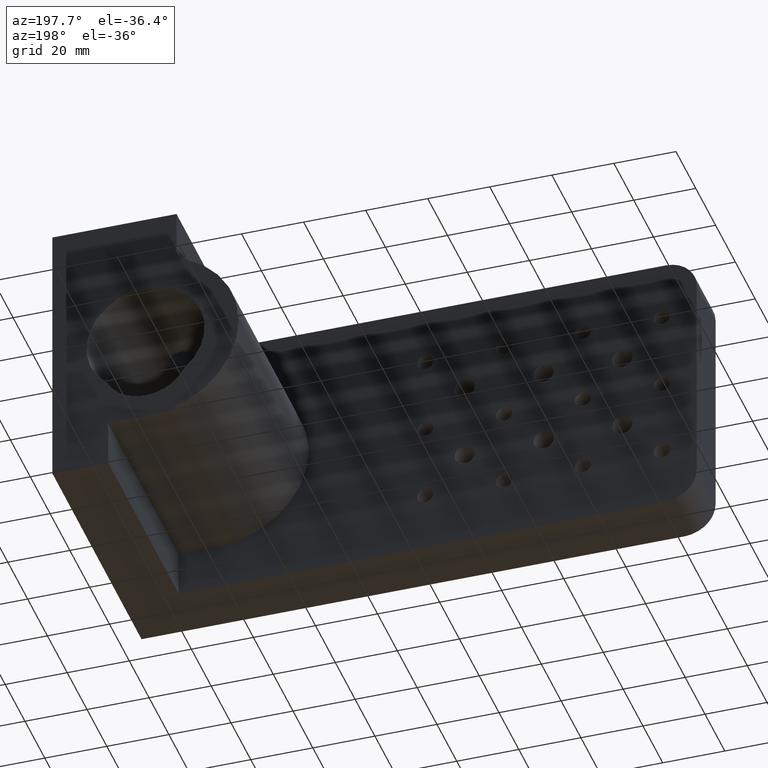
[diagram: clean part render]
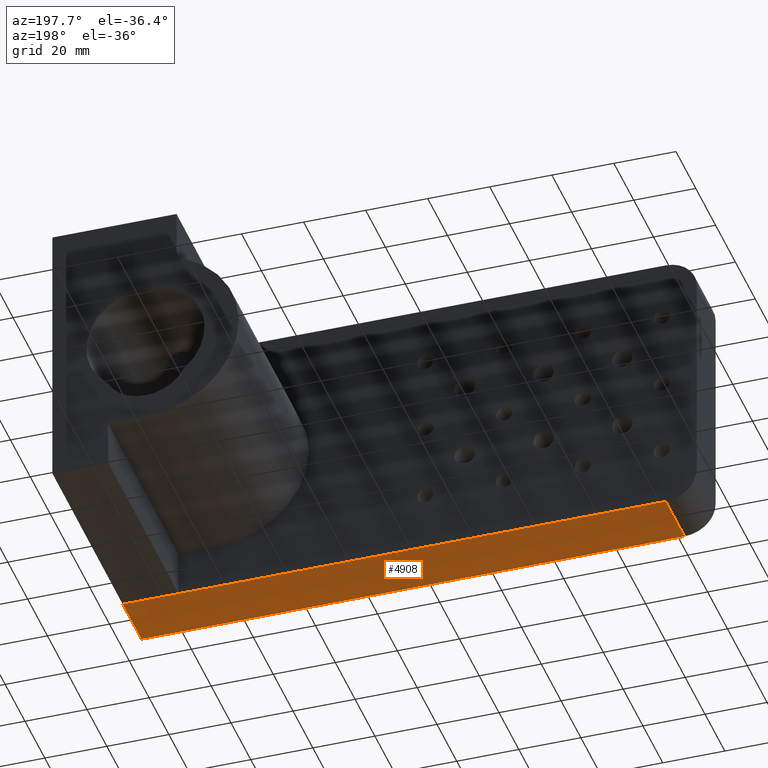
[diagram: same view with one face highlighted and labeled with its STEP entity id]
A machine part, auxiliary view. The second image highlights one B-rep face of the part: STEP entity #4908.
In plain terms, the highlighted planar face has unit normal (0, 0, -1).
Its self-contained STEP definition (entity closure, byte-faithful):
#66 = LINE ( 'NONE', #4220, #4362 ) ;
#68 = LINE ( 'NONE', #2564, #1041 ) ;
#548 = PLANE ( 'NONE',  #2893 ) ;
#970 = EDGE_CURVE ( 'NONE', #4945, #1992, #68, .T. ) ;
#1041 = VECTOR ( 'NONE', #4291, 1000.000000000000000 ) ;
#1279 = DIRECTION ( 'NONE',  ( 1.000000000000000000, -0.0000000000000000000, 0.0000000000000000000 ) ) ;
#1720 = DIRECTION ( 'NONE',  ( 1.000000000000000000, -0.0000000000000000000, 0.0000000000000000000 ) ) ;
#1763 = CARTESIAN_POINT ( 'NONE',  ( 174.3969387244427500, 85.21460203965206400, 98.81589392528026400 ) ) ;
#1825 = ORIENTED_EDGE ( 'NONE', *, *, #3580, .T. ) ;
#1901 = DIRECTION ( 'NONE',  ( -1.000000000000000000, 0.0000000000000000000, -0.0000000000000000000 ) ) ;
#1992 = VERTEX_POINT ( 'NONE', #1763 ) ;
#2124 = CARTESIAN_POINT ( 'NONE',  ( -0.6030612755571762600, 104.2146020396520600, 98.81589392528026400 ) ) ;
#2408 = VECTOR ( 'NONE', #1720, 1000.000000000000000 ) ;
#2564 = CARTESIAN_POINT ( 'NONE',  ( 174.3969387244427500, 104.2146020396520600, 98.81589392528026400 ) ) ;
#2696 = DIRECTION ( 'NONE',  ( 0.0000000000000000000, 0.0000000000000000000, -1.000000000000000000 ) ) ;
#2799 = EDGE_LOOP ( 'NONE', ( #4418, #3980, #1825, #4384 ) ) ;
#2893 = AXIS2_PLACEMENT_3D ( 'NONE', #3185, #2696, #1901 ) ;
#3028 = EDGE_CURVE ( 'NONE', #3393, #5249, #4136, .T. ) ;
#3185 = CARTESIAN_POINT ( 'NONE',  ( 174.3969387244427500, 104.2146020396520600, 98.81589392528026400 ) ) ;
#3350 = VECTOR ( 'NONE', #3360, 1000.000000000000000 ) ;
#3360 = DIRECTION ( 'NONE',  ( -0.0000000000000000000, -1.000000000000000000, -0.0000000000000000000 ) ) ;
#3393 = VERTEX_POINT ( 'NONE', #2124 ) ;
#3544 = LINE ( 'NONE', #4639, #2408 ) ;
#3580 = EDGE_CURVE ( 'NONE', #3393, #4945, #3544, .T. ) ;
#3971 = CARTESIAN_POINT ( 'NONE',  ( 174.3969387244427500, 104.2146020396520600, 98.81589392528026400 ) ) ;
#3980 = ORIENTED_EDGE ( 'NONE', *, *, #3028, .F. ) ;
#4136 = LINE ( 'NONE', #4604, #3350 ) ;
#4220 = CARTESIAN_POINT ( 'NONE',  ( 174.3969387244427500, 85.21460203965206400, 98.81589392528026400 ) ) ;
#4291 = DIRECTION ( 'NONE',  ( -0.0000000000000000000, -1.000000000000000000, -0.0000000000000000000 ) ) ;
#4362 = VECTOR ( 'NONE', #1279, 1000.000000000000000 ) ;
#4384 = ORIENTED_EDGE ( 'NONE', *, *, #970, .T. ) ;
#4418 = ORIENTED_EDGE ( 'NONE', *, *, #5149, .F. ) ;
#4503 = FACE_OUTER_BOUND ( 'NONE', #2799, .T. ) ;
#4604 = CARTESIAN_POINT ( 'NONE',  ( -0.6030612755571762600, 104.2146020396520600, 98.81589392528026400 ) ) ;
#4639 = CARTESIAN_POINT ( 'NONE',  ( 174.3969387244427500, 104.2146020396520600, 98.81589392528026400 ) ) ;
#4656 = CARTESIAN_POINT ( 'NONE',  ( -0.6030612755571762600, 85.21460203965206400, 98.81589392528026400 ) ) ;
#4908 = ADVANCED_FACE ( 'NONE', ( #4503 ), #548, .T. ) ;
#4945 = VERTEX_POINT ( 'NONE', #3971 ) ;
#5149 = EDGE_CURVE ( 'NONE', #5249, #1992, #66, .T. ) ;
#5249 = VERTEX_POINT ( 'NONE', #4656 ) ;